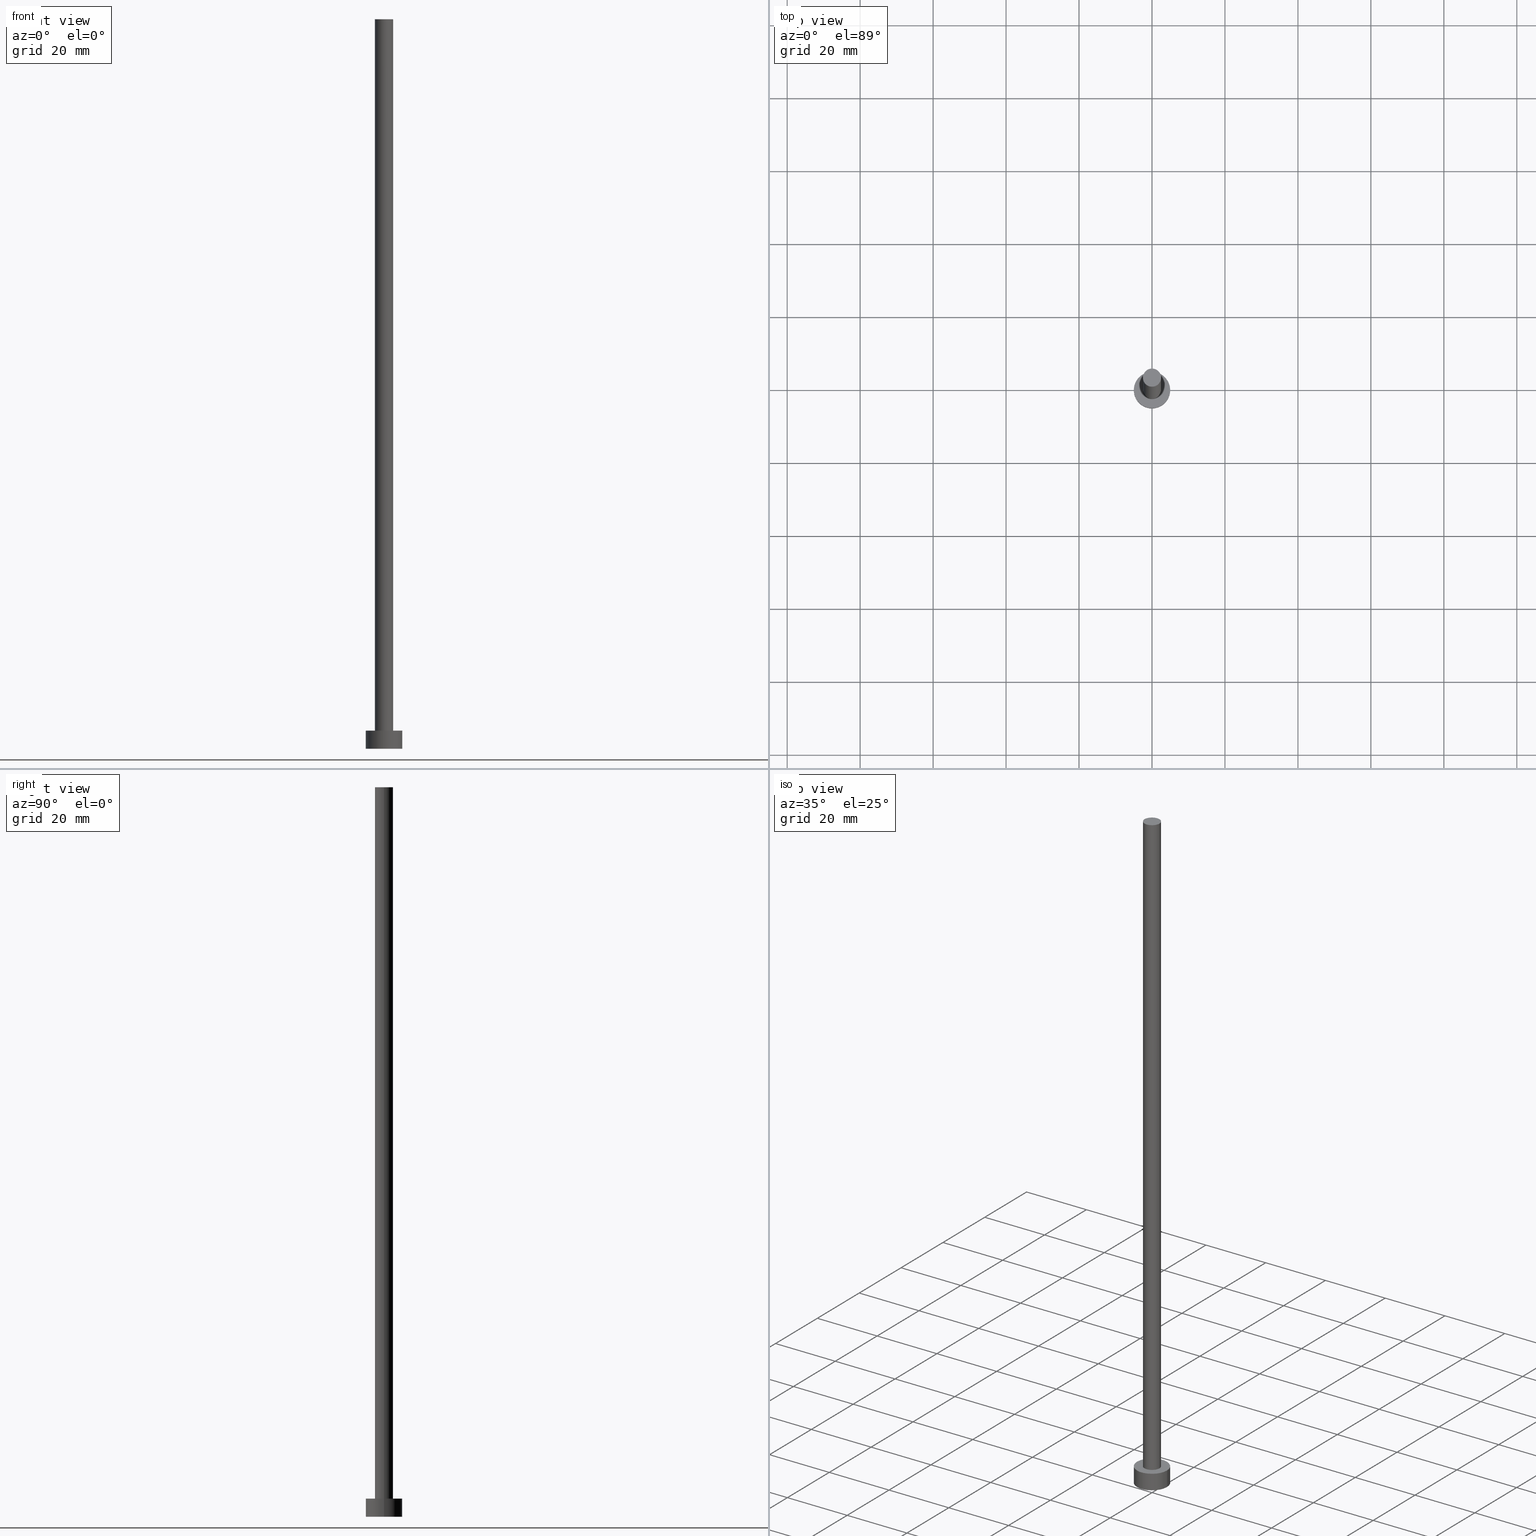
[diagram: canonical four-view strip — front | top / right | iso, engineering-drawing reading convention]
A machine part, canonical four-view strip (front | top / right | iso — engineering-drawing reading convention). The complete STEP part file that produces these views, byte-faithful:
ISO-10303-21;
HEADER;
FILE_DESCRIPTION (( 'STEP AP203' ),
    '1' );
FILE_NAME ('2bb7.STEP',
    '2023-02-13T16:18:04',
    ( '' ),
    ( '' ),
    'SwSTEP 2.0',
    'SolidWorks 2019',
    '' );
FILE_SCHEMA (( 'CONFIG_CONTROL_DESIGN' ));
ENDSEC;

DATA;
#1 = CYLINDRICAL_SURFACE ( 'NONE', #119, 5.000000000000000000 ) ;
#2 = CARTESIAN_POINT ( 'NONE',  ( 0.000000000000000000, 0.000000000000000000, 5.000000000000000000 ) ) ;
#3 = SECURITY_CLASSIFICATION ( '', '', #245 ) ;
#4 = DIRECTION ( 'NONE',  ( 1.000000000000000000, 0.000000000000000000, 0.000000000000000000 ) ) ;
#5 = CIRCLE ( 'NONE', #64, 2.500000000000000000 ) ;
#6 = COORDINATED_UNIVERSAL_TIME_OFFSET ( 1, 0, .AHEAD. ) ;
#7 = VECTOR ( 'NONE', #237, 1000.000000000000000 ) ;
#8 = EDGE_LOOP ( 'NONE', ( #105, #211, #191, #109 ) ) ;
#9 = PERSON_AND_ORGANIZATION_ROLE ( 'creator' ) ;
#10 = PERSON ( 'NEUR�EN�', 'NEUR�EN�', 'NEUR�EN�', ('NEUR�EN�'), ('NEUR�EN�'), ('NEUR�EN�') ) ;
#11 = ORIENTED_EDGE ( 'NONE', *, *, #83, .F. ) ;
#12 = COORDINATED_UNIVERSAL_TIME_OFFSET ( 1, 0, .AHEAD. ) ;
#13 = AXIS2_PLACEMENT_3D ( 'NONE', #131, #110, #17 ) ;
#14 = AXIS2_PLACEMENT_3D ( 'NONE', #58, #202, #39 ) ;
#15 = DIRECTION ( 'NONE',  ( -0.000000000000000000, -0.000000000000000000, -1.000000000000000000 ) ) ;
#16 = CARTESIAN_POINT ( 'NONE',  ( 5.000000000000000000, 6.123233995736766282E-16, 5.000000000000000000 ) ) ;
#17 = DIRECTION ( 'NONE',  ( -1.000000000000000000, 0.000000000000000000, 0.000000000000000000 ) ) ;
#18 = LOCAL_TIME ( 17, 18, 4.000000000000000000, #6 ) ;
#19 = VERTEX_POINT ( 'NONE', #154 ) ;
#20 = ADVANCED_FACE ( 'NONE', ( #91 ), #195, .T. ) ;
#21 = CARTESIAN_POINT ( 'NONE',  ( 0.000000000000000000, 0.000000000000000000, 5.000000000000000000 ) ) ;
#22 = CLOSED_SHELL ( 'NONE', ( #99, #238, #221, #200, #249, #128, #20 ) ) ;
#23 = AXIS2_PLACEMENT_3D ( 'NONE', #239, #94, #4 ) ;
#24 = COORDINATED_UNIVERSAL_TIME_OFFSET ( 1, 0, .AHEAD. ) ;
#25 = CARTESIAN_POINT ( 'NONE',  ( 0.000000000000000000, 0.000000000000000000, 5.000000000000000000 ) ) ;
#26 = EDGE_CURVE ( 'NONE', #171, #19, #173, .T. ) ;
#27 = PRODUCT_DEFINITION_FORMATION_WITH_SPECIFIED_SOURCE ( 'LIBOVOLN�', '', #126, .NOT_KNOWN. ) ;
#28 = ORIENTED_EDGE ( 'NONE', *, *, #65, .T. ) ;
#29 = CIRCLE ( 'NONE', #161, 5.000000000000000000 ) ;
#30 = PERSON_AND_ORGANIZATION_ROLE ( 'creator' ) ;
#31 = VERTEX_POINT ( 'NONE', #135 ) ;
#32 = CARTESIAN_POINT ( 'NONE',  ( 5.000000000000000000, 6.123233995736766282E-16, 5.000000000000000000 ) ) ;
#33 = EDGE_LOOP ( 'NONE', ( #216, #136, #122, #68 ) ) ;
#34 = DIRECTION ( 'NONE',  ( 0.000000000000000000, 0.000000000000000000, 1.000000000000000000 ) ) ;
#35 = ORIENTED_EDGE ( 'NONE', *, *, #174, .F. ) ;
#36 = DIRECTION ( 'NONE',  ( -0.000000000000000000, -0.000000000000000000, -1.000000000000000000 ) ) ;
#37 = VECTOR ( 'NONE', #214, 1000.000000000000000 ) ;
#38 = ORGANIZATION ( 'NEUR�EN�', 'NEUR�EN�', '' ) ;
#39 = DIRECTION ( 'NONE',  ( 1.000000000000000000, 0.000000000000000000, 0.000000000000000000 ) ) ;
#40 = DIRECTION ( 'NONE',  ( 0.000000000000000000, 0.000000000000000000, 1.000000000000000000 ) ) ;
#41 = CARTESIAN_POINT ( 'NONE',  ( 0.000000000000000000, 0.000000000000000000, 0.000000000000000000 ) ) ;
#42 = PRODUCT_RELATED_PRODUCT_CATEGORY ( 'detail', '', ( #126 ) ) ;
#43 = DATE_AND_TIME ( #104, #143 ) ;
#44 = APPROVAL_PERSON_ORGANIZATION ( #98, #138, #176 ) ;
#45 = DATE_AND_TIME ( #165, #97 ) ;
#46 = APPROVAL ( #210, 'NEUR�EN�' ) ;
#47 = APPROVAL_ROLE ( '' ) ;
#48 = ORIENTED_EDGE ( 'NONE', *, *, #181, .T. ) ;
#49 = APPROVAL_ROLE ( '' ) ;
#50 = CYLINDRICAL_SURFACE ( 'NONE', #13, 2.500000000000000000 ) ;
#51 = CC_DESIGN_APPROVAL ( #203, ( #3 ) ) ;
#52 = CARTESIAN_POINT ( 'NONE',  ( 0.000000000000000000, 0.000000000000000000, 200.0000000000000000 ) ) ;
#53 = CARTESIAN_POINT ( 'NONE',  ( 0.000000000000000000, 0.000000000000000000, 0.000000000000000000 ) ) ;
#54 = CARTESIAN_POINT ( 'NONE',  ( 0.000000000000000000, 0.000000000000000000, 5.000000000000000000 ) ) ;
#55 = DIRECTION ( 'NONE',  ( 1.000000000000000000, 0.000000000000000000, 0.000000000000000000 ) ) ;
#56 = FACE_OUTER_BOUND ( 'NONE', #108, .T. ) ;
#57 = DIRECTION ( 'NONE',  ( 0.000000000000000000, 0.000000000000000000, 1.000000000000000000 ) ) ;
#58 = CARTESIAN_POINT ( 'NONE',  ( 0.000000000000000000, 0.000000000000000000, 200.0000000000000000 ) ) ;
#59 = CARTESIAN_POINT ( 'NONE',  ( 2.500000000000000000, 3.061616997868383141E-16, 200.0000000000000000 ) ) ;
#60 = AXIS2_PLACEMENT_3D ( 'NONE', #113, #155, #75 ) ;
#61 = ORIENTED_EDGE ( 'NONE', *, *, #226, .T. ) ;
#62 = EDGE_CURVE ( 'NONE', #169, #162, #220, .T. ) ;
#63 = PERSON_AND_ORGANIZATION ( #10, #38 ) ;
#64 = AXIS2_PLACEMENT_3D ( 'NONE', #168, #71, #232 ) ;
#65 = EDGE_CURVE ( 'NONE', #162, #169, #29, .T. ) ;
#66 = PERSON_AND_ORGANIZATION ( #10, #38 ) ;
#67 = CARTESIAN_POINT ( 'NONE',  ( -2.500000000000000000, 0.000000000000000000, 5.000000000000000000 ) ) ;
#68 = ORIENTED_EDGE ( 'NONE', *, *, #72, .T. ) ;
#69 = CC_DESIGN_APPROVAL ( #138, ( #170 ) ) ;
#70 = DIRECTION ( 'NONE',  ( 1.000000000000000000, 0.000000000000000000, 0.000000000000000000 ) ) ;
#71 = DIRECTION ( 'NONE',  ( 0.000000000000000000, 0.000000000000000000, 1.000000000000000000 ) ) ;
#72 = EDGE_CURVE ( 'NONE', #124, #233, #5, .T. ) ;
#73 = DIRECTION ( 'NONE',  ( 1.000000000000000000, 0.000000000000000000, 0.000000000000000000 ) ) ;
#74 = DIRECTION ( 'NONE',  ( -1.000000000000000000, 0.000000000000000000, 0.000000000000000000 ) ) ;
#75 = DIRECTION ( 'NONE',  ( -1.000000000000000000, 0.000000000000000000, 0.000000000000000000 ) ) ;
#76 = CARTESIAN_POINT ( 'NONE',  ( 2.500000000000000000, 3.061616997868383141E-16, 200.0000000000000000 ) ) ;
#77 = PLANE ( 'NONE',  #185 ) ;
#78 = CYLINDRICAL_SURFACE ( 'NONE', #60, 5.000000000000000000 ) ;
#79 = CC_DESIGN_PERSON_AND_ORGANIZATION_ASSIGNMENT ( #197, #141, ( #126 ) ) ;
#80 = AXIS2_PLACEMENT_3D ( 'NONE', #254, #111, #55 ) ;
#81 = ORIENTED_EDGE ( 'NONE', *, *, #26, .F. ) ;
#82 = CALENDAR_DATE ( 2023, 13, 2 ) ;
#83 = EDGE_CURVE ( 'NONE', #233, #124, #201, .T. ) ;
#84 = COORDINATED_UNIVERSAL_TIME_OFFSET ( 1, 0, .AHEAD. ) ;
#85 = LINE ( 'NONE', #166, #37 ) ;
#86 = CC_DESIGN_PERSON_AND_ORGANIZATION_ASSIGNMENT ( #222, #30, ( #27 ) ) ;
#87 = CARTESIAN_POINT ( 'NONE',  ( 0.000000000000000000, 0.000000000000000000, 0.000000000000000000 ) ) ;
#88 = DIRECTION ( 'NONE',  ( 0.000000000000000000, 0.000000000000000000, 1.000000000000000000 ) ) ;
#89 = ORIENTED_EDGE ( 'NONE', *, *, #229, .T. ) ;
#90 = EDGE_CURVE ( 'NONE', #162, #171, #133, .T. ) ;
#91 = FACE_OUTER_BOUND ( 'NONE', #205, .T. ) ;
#92 = APPROVAL_STATUS ( 'not_yet_approved' ) ;
#93 = APPLICATION_PROTOCOL_DEFINITION ( 'international standard', 'config_control_design', 1994, #129 ) ;
#94 = DIRECTION ( 'NONE',  ( 0.000000000000000000, 0.000000000000000000, 1.000000000000000000 ) ) ;
#95 = CC_DESIGN_DATE_AND_TIME_ASSIGNMENT ( #45, #204, ( #3 ) ) ;
#96 = FACE_OUTER_BOUND ( 'NONE', #8, .T. ) ;
#97 = LOCAL_TIME ( 17, 18, 4.000000000000000000, #12 ) ;
#98 = PERSON_AND_ORGANIZATION ( #10, #38 ) ;
#99 = ADVANCED_FACE ( 'NONE', ( #215 ), #217, .T. ) ;
#100 = APPROVAL_STATUS ( 'not_yet_approved' ) ;
#101 = ORIENTED_EDGE ( 'NONE', *, *, #83, .T. ) ;
#102 = CC_DESIGN_APPROVAL ( #46, ( #27 ) ) ;
#103 = EDGE_LOOP ( 'NONE', ( #207, #212, #228, #150 ) ) ;
#104 = CALENDAR_DATE ( 2023, 13, 2 ) ;
#105 = ORIENTED_EDGE ( 'NONE', *, *, #62, .F. ) ;
#106 = ADVANCED_BREP_SHAPE_REPRESENTATION ( '2bb7', ( #225, #230 ), #209 ) ;
#107 = DATE_AND_TIME ( #125, #234 ) ;
#108 = EDGE_LOOP ( 'NONE', ( #81, #35 ) ) ;
#109 = ORIENTED_EDGE ( 'NONE', *, *, #90, .F. ) ;
#110 = DIRECTION ( 'NONE',  ( -0.000000000000000000, -0.000000000000000000, -1.000000000000000000 ) ) ;
#111 = DIRECTION ( 'NONE',  ( 0.000000000000000000, 0.000000000000000000, 1.000000000000000000 ) ) ;
#112 = EDGE_CURVE ( 'NONE', #31, #124, #85, .T. ) ;
#113 = CARTESIAN_POINT ( 'NONE',  ( 0.000000000000000000, 0.000000000000000000, 5.000000000000000000 ) ) ;
#114 = DIRECTION ( 'NONE',  ( 1.000000000000000000, 0.000000000000000000, 0.000000000000000000 ) ) ;
#115 = DIRECTION ( 'NONE',  ( 1.000000000000000000, 0.000000000000000000, 0.000000000000000000 ) ) ;
#116 = CIRCLE ( 'NONE', #130, 5.000000000000000000 ) ;
#117 = EDGE_CURVE ( 'NONE', #169, #19, #193, .T. ) ;
#118 = APPLICATION_CONTEXT ( 'configuration controlled 3d designs of mechanical parts and assemblies' ) ;
#119 = AXIS2_PLACEMENT_3D ( 'NONE', #25, #236, #74 ) ;
#120 = UNCERTAINTY_MEASURE_WITH_UNIT (LENGTH_MEASURE( 1.000000000000000082E-05 ), #177, 'distance_accuracy_value', 'NONE');
#121 = SHAPE_DEFINITION_REPRESENTATION ( #188, #106 ) ;
#122 = ORIENTED_EDGE ( 'NONE', *, *, #112, .T. ) ;
#123 = DATE_AND_TIME ( #182, #243 ) ;
#124 = VERTEX_POINT ( 'NONE', #67 ) ;
#125 = CALENDAR_DATE ( 2023, 13, 2 ) ;
#126 = PRODUCT ( '2bb7', '2bb7', '', ( #196 ) ) ;
#127 = ORIENTED_EDGE ( 'NONE', *, *, #181, .F. ) ;
#128 = ADVANCED_FACE ( 'NONE', ( #148 ), #50, .T. ) ;
#129 = APPLICATION_CONTEXT ( 'configuration controlled 3d designs of mechanical parts and assemblies' ) ;
#130 = AXIS2_PLACEMENT_3D ( 'NONE', #53, #34, #114 ) ;
#131 = CARTESIAN_POINT ( 'NONE',  ( 0.000000000000000000, 0.000000000000000000, 200.0000000000000000 ) ) ;
#132 = DIRECTION ( 'NONE',  ( 1.000000000000000000, 0.000000000000000000, -0.000000000000000000 ) ) ;
#133 = LINE ( 'NONE', #231, #183 ) ;
#134 = VECTOR ( 'NONE', #250, 1000.000000000000000 ) ;
#135 = CARTESIAN_POINT ( 'NONE',  ( -2.500000000000000000, 0.000000000000000000, 200.0000000000000000 ) ) ;
#136 = ORIENTED_EDGE ( 'NONE', *, *, #226, .F. ) ;
#137 = CARTESIAN_POINT ( 'NONE',  ( 0.000000000000000000, 0.000000000000000000, 0.000000000000000000 ) ) ;
#138 = APPROVAL ( #92, 'NEUR�EN�' ) ;
#139 = CARTESIAN_POINT ( 'NONE',  ( 2.500000000000000000, 3.061616997868383141E-16, 5.000000000000000000 ) ) ;
#140 = LINE ( 'NONE', #59, #7 ) ;
#141 = PERSON_AND_ORGANIZATION_ROLE ( 'design_owner' ) ;
#142 = CIRCLE ( 'NONE', #23, 2.500000000000000000 ) ;
#143 = LOCAL_TIME ( 17, 18, 4.000000000000000000, #24 ) ;
#144 = COORDINATED_UNIVERSAL_TIME_OFFSET ( 1, 0, .AHEAD. ) ;
#145 = DATE_AND_TIME ( #82, #18 ) ;
#146 = EDGE_LOOP ( 'NONE', ( #153, #11 ) ) ;
#147 = DATE_TIME_ROLE ( 'creation_date' ) ;
#148 = FACE_OUTER_BOUND ( 'NONE', #33, .T. ) ;
#149 = AXIS2_PLACEMENT_3D ( 'NONE', #54, #172, #73 ) ;
#150 = ORIENTED_EDGE ( 'NONE', *, *, #26, .T. ) ;
#151 = DIRECTION ( 'NONE',  ( 1.000000000000000000, 0.000000000000000000, 0.000000000000000000 ) ) ;
#152 = CC_DESIGN_PERSON_AND_ORGANIZATION_ASSIGNMENT ( #66, #9, ( #170 ) ) ;
#153 = ORIENTED_EDGE ( 'NONE', *, *, #72, .F. ) ;
#154 = CARTESIAN_POINT ( 'NONE',  ( 5.000000000000000000, 6.123233995736766282E-16, 0.000000000000000000 ) ) ;
#155 = DIRECTION ( 'NONE',  ( -0.000000000000000000, -0.000000000000000000, -1.000000000000000000 ) ) ;
#156 = FACE_OUTER_BOUND ( 'NONE', #242, .T. ) ;
#157 = AXIS2_PLACEMENT_3D ( 'NONE', #87, #253, #70 ) ;
#158 = DIRECTION ( 'NONE',  ( 1.000000000000000000, 0.000000000000000000, -0.000000000000000000 ) ) ;
#159 = DIRECTION ( 'NONE',  ( 1.000000000000000000, 0.000000000000000000, -0.000000000000000000 ) ) ;
#160 = PERSON_AND_ORGANIZATION ( #10, #38 ) ;
#161 = AXIS2_PLACEMENT_3D ( 'NONE', #21, #252, #151 ) ;
#162 = VERTEX_POINT ( 'NONE', #192 ) ;
#163 = APPROVAL_DATE_TIME ( #123, #203 ) ;
#164 = CIRCLE ( 'NONE', #14, 2.500000000000000000 ) ;
#165 = CALENDAR_DATE ( 2023, 13, 2 ) ;
#166 = CARTESIAN_POINT ( 'NONE',  ( -2.500000000000000000, 0.000000000000000000, 200.0000000000000000 ) ) ;
#167 = DESIGN_CONTEXT ( 'detailed design', #129, 'design' ) ;
#168 = CARTESIAN_POINT ( 'NONE',  ( 0.000000000000000000, 0.000000000000000000, 5.000000000000000000 ) ) ;
#169 = VERTEX_POINT ( 'NONE', #16 ) ;
#170 = PRODUCT_DEFINITION ( 'NEZN�M�', '', #27, #167 ) ;
#171 = VERTEX_POINT ( 'NONE', #251 ) ;
#172 = DIRECTION ( 'NONE',  ( 0.000000000000000000, 0.000000000000000000, 1.000000000000000000 ) ) ;
#173 = CIRCLE ( 'NONE', #157, 5.000000000000000000 ) ;
#174 = EDGE_CURVE ( 'NONE', #19, #171, #116, .T. ) ;
#175 = AXIS2_PLACEMENT_3D ( 'NONE', #2, #57, #158 ) ;
#176 = APPROVAL_ROLE ( '' ) ;
#177 =( LENGTH_UNIT ( ) NAMED_UNIT ( * ) SI_UNIT ( .MILLI., .METRE. ) );
#178 = AXIS2_PLACEMENT_3D ( 'NONE', #235, #88, #132 ) ;
#179 = CC_DESIGN_DATE_AND_TIME_ASSIGNMENT ( #145, #147, ( #170 ) ) ;
#180 = PLANE ( 'NONE',  #175 ) ;
#181 = EDGE_CURVE ( 'NONE', #224, #31, #142, .T. ) ;
#182 = CALENDAR_DATE ( 2023, 13, 2 ) ;
#183 = VECTOR ( 'NONE', #15, 1000.000000000000000 ) ;
#184 = AXIS2_PLACEMENT_3D ( 'NONE', #52, #36, #194 ) ;
#185 = AXIS2_PLACEMENT_3D ( 'NONE', #137, #218, #159 ) ;
#186 = APPROVAL_DATE_TIME ( #43, #138 ) ;
#187 = EDGE_LOOP ( 'NONE', ( #127, #89, #101, #244 ) ) ;
#188 = PRODUCT_DEFINITION_SHAPE ( 'NONE', 'NONE',  #170 ) ;
#189 = CC_DESIGN_PERSON_AND_ORGANIZATION_ASSIGNMENT ( #63, #206, ( #3 ) ) ;
#190 = PERSON_AND_ORGANIZATION ( #10, #38 ) ;
#191 = ORIENTED_EDGE ( 'NONE', *, *, #174, .T. ) ;
#192 = CARTESIAN_POINT ( 'NONE',  ( -5.000000000000000000, 0.000000000000000000, 5.000000000000000000 ) ) ;
#193 = LINE ( 'NONE', #32, #134 ) ;
#194 = DIRECTION ( 'NONE',  ( -1.000000000000000000, 0.000000000000000000, 0.000000000000000000 ) ) ;
#195 = PLANE ( 'NONE',  #178 ) ;
#196 = MECHANICAL_CONTEXT ( 'NONE', #118, 'mechanical' ) ;
#197 = PERSON_AND_ORGANIZATION ( #10, #38 ) ;
#198 =( NAMED_UNIT ( * ) PLANE_ANGLE_UNIT ( ) SI_UNIT ( $, .RADIAN. ) );
#199 = FACE_OUTER_BOUND ( 'NONE', #103, .T. ) ;
#200 = ADVANCED_FACE ( 'NONE', ( #255, #156 ), #180, .T. ) ;
#201 = CIRCLE ( 'NONE', #149, 2.500000000000000000 ) ;
#202 = DIRECTION ( 'NONE',  ( 0.000000000000000000, 0.000000000000000000, 1.000000000000000000 ) ) ;
#203 = APPROVAL ( #100, 'NEUR�EN�' ) ;
#204 = DATE_TIME_ROLE ( 'classification_date' ) ;
#205 = EDGE_LOOP ( 'NONE', ( #61, #48 ) ) ;
#206 = PERSON_AND_ORGANIZATION_ROLE ( 'classification_officer' ) ;
#207 = ORIENTED_EDGE ( 'NONE', *, *, #117, .F. ) ;
#208 = APPROVAL_PERSON_ORGANIZATION ( #190, #203, #49 ) ;
#209 =( GEOMETRIC_REPRESENTATION_CONTEXT ( 3 ) GLOBAL_UNCERTAINTY_ASSIGNED_CONTEXT ( ( #120 ) ) GLOBAL_UNIT_ASSIGNED_CONTEXT ( ( #177, #198, #240 ) ) REPRESENTATION_CONTEXT ( 'NONE', 'WORKASPACE' ) );
#210 = APPROVAL_STATUS ( 'not_yet_approved' ) ;
#211 = ORIENTED_EDGE ( 'NONE', *, *, #117, .T. ) ;
#212 = ORIENTED_EDGE ( 'NONE', *, *, #65, .F. ) ;
#213 = CC_DESIGN_PERSON_AND_ORGANIZATION_ASSIGNMENT ( #160, #223, ( #27 ) ) ;
#214 = DIRECTION ( 'NONE',  ( -0.000000000000000000, -0.000000000000000000, -1.000000000000000000 ) ) ;
#215 = FACE_OUTER_BOUND ( 'NONE', #187, .T. ) ;
#216 = ORIENTED_EDGE ( 'NONE', *, *, #229, .F. ) ;
#217 = CYLINDRICAL_SURFACE ( 'NONE', #184, 2.500000000000000000 ) ;
#218 = DIRECTION ( 'NONE',  ( 0.000000000000000000, 0.000000000000000000, 1.000000000000000000 ) ) ;
#219 = APPROVAL_PERSON_ORGANIZATION ( #247, #46, #47 ) ;
#220 = CIRCLE ( 'NONE', #80, 5.000000000000000000 ) ;
#221 = ADVANCED_FACE ( 'NONE', ( #199 ), #1, .T. ) ;
#222 = PERSON_AND_ORGANIZATION ( #10, #38 ) ;
#223 = PERSON_AND_ORGANIZATION_ROLE ( 'design_supplier' ) ;
#224 = VERTEX_POINT ( 'NONE', #76 ) ;
#225 = MANIFOLD_SOLID_BREP ( 'P�idat vysunut�m3', #22 ) ;
#226 = EDGE_CURVE ( 'NONE', #31, #224, #164, .T. ) ;
#227 = APPROVAL_DATE_TIME ( #107, #46 ) ;
#228 = ORIENTED_EDGE ( 'NONE', *, *, #90, .T. ) ;
#229 = EDGE_CURVE ( 'NONE', #224, #233, #140, .T. ) ;
#230 = AXIS2_PLACEMENT_3D ( 'NONE', #41, #40, #115 ) ;
#231 = CARTESIAN_POINT ( 'NONE',  ( -5.000000000000000000, 0.000000000000000000, 5.000000000000000000 ) ) ;
#232 = DIRECTION ( 'NONE',  ( 1.000000000000000000, 0.000000000000000000, 0.000000000000000000 ) ) ;
#233 = VERTEX_POINT ( 'NONE', #139 ) ;
#234 = LOCAL_TIME ( 17, 18, 4.000000000000000000, #84 ) ;
#235 = CARTESIAN_POINT ( 'NONE',  ( 0.000000000000000000, 0.000000000000000000, 200.0000000000000000 ) ) ;
#236 = DIRECTION ( 'NONE',  ( -0.000000000000000000, -0.000000000000000000, -1.000000000000000000 ) ) ;
#237 = DIRECTION ( 'NONE',  ( -0.000000000000000000, -0.000000000000000000, -1.000000000000000000 ) ) ;
#238 = ADVANCED_FACE ( 'NONE', ( #96 ), #78, .T. ) ;
#239 = CARTESIAN_POINT ( 'NONE',  ( 0.000000000000000000, 0.000000000000000000, 200.0000000000000000 ) ) ;
#240 =( NAMED_UNIT ( * ) SI_UNIT ( $, .STERADIAN. ) SOLID_ANGLE_UNIT ( ) );
#241 = APPLICATION_PROTOCOL_DEFINITION ( 'international standard', 'config_control_design', 1994, #118 ) ;
#242 = EDGE_LOOP ( 'NONE', ( #28, #246 ) ) ;
#243 = LOCAL_TIME ( 17, 18, 4.000000000000000000, #144 ) ;
#244 = ORIENTED_EDGE ( 'NONE', *, *, #112, .F. ) ;
#245 = SECURITY_CLASSIFICATION_LEVEL ( 'unclassified' ) ;
#246 = ORIENTED_EDGE ( 'NONE', *, *, #62, .T. ) ;
#247 = PERSON_AND_ORGANIZATION ( #10, #38 ) ;
#248 = CC_DESIGN_SECURITY_CLASSIFICATION ( #3, ( #27 ) ) ;
#249 = ADVANCED_FACE ( 'NONE', ( #56 ), #77, .F. ) ;
#250 = DIRECTION ( 'NONE',  ( -0.000000000000000000, -0.000000000000000000, -1.000000000000000000 ) ) ;
#251 = CARTESIAN_POINT ( 'NONE',  ( -5.000000000000000000, 0.000000000000000000, 0.000000000000000000 ) ) ;
#252 = DIRECTION ( 'NONE',  ( 0.000000000000000000, 0.000000000000000000, 1.000000000000000000 ) ) ;
#253 = DIRECTION ( 'NONE',  ( 0.000000000000000000, 0.000000000000000000, 1.000000000000000000 ) ) ;
#254 = CARTESIAN_POINT ( 'NONE',  ( 0.000000000000000000, 0.000000000000000000, 5.000000000000000000 ) ) ;
#255 = FACE_BOUND ( 'NONE', #146, .T. ) ;
ENDSEC;
END-ISO-10303-21;
